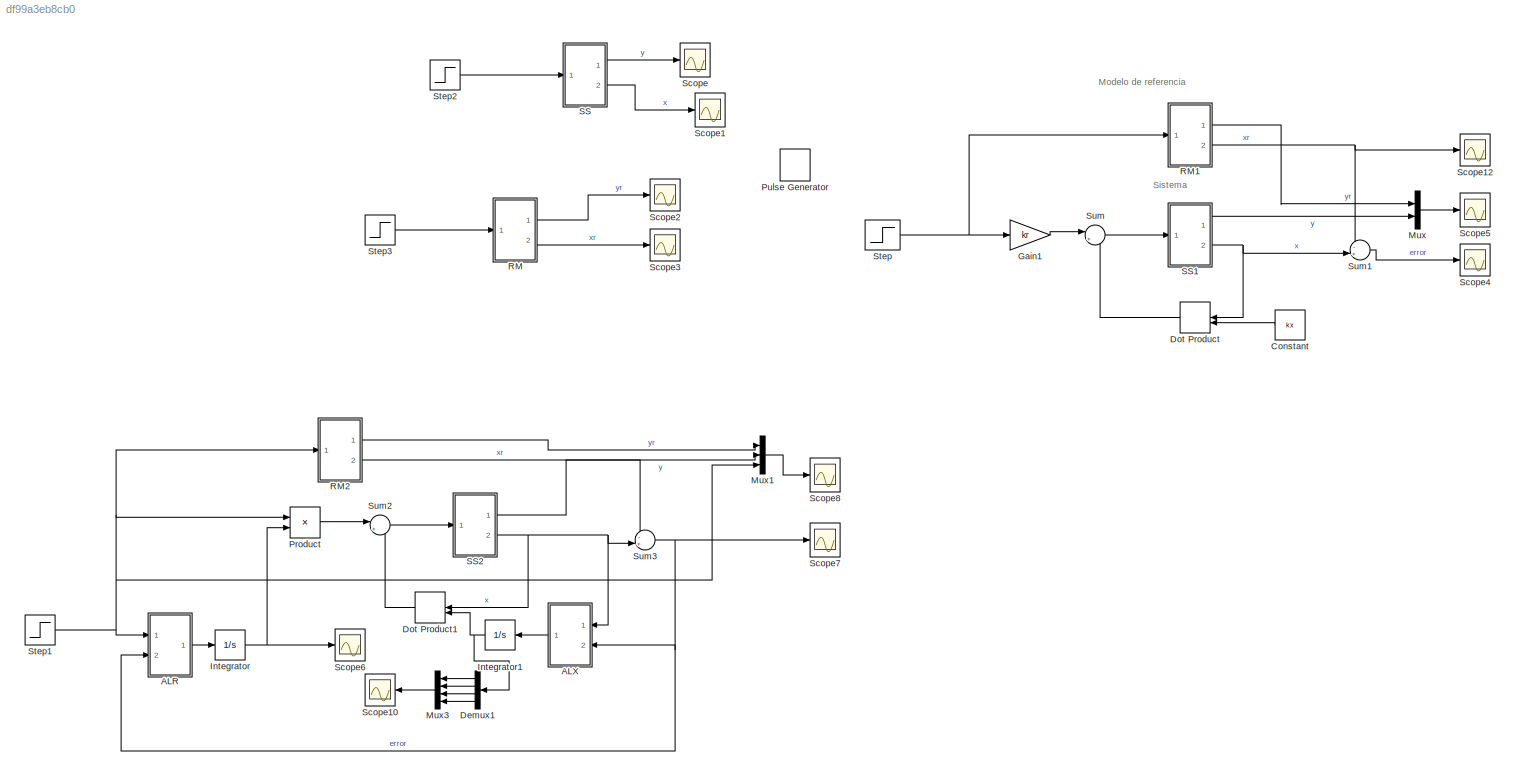
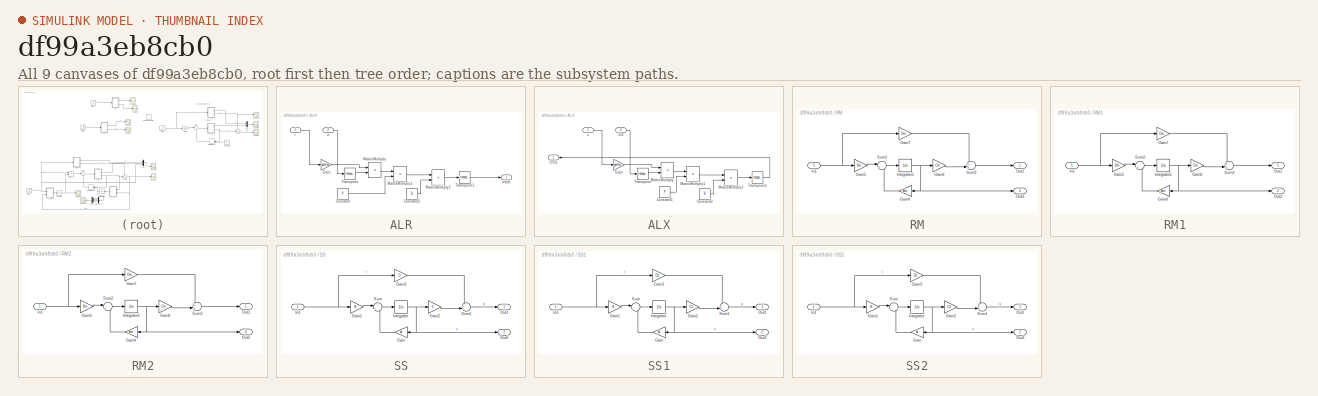
[diagram: thumbnail index - all 9 canvases of the model, root first then tree order]
MODEL slx_df99a3eb8cb0
KIND model
CONFIG AbsTol = auto
CONFIG EnableMultiTasking = off
CONFIG FixedStep = auto
CONFIG MaxStep = auto
CONFIG MinStep = auto
CONFIG RelTol = 1e-3
CONFIG SampleTimeConstraint = Unconstrained
CONFIG SolverName = VariableStepAuto
CONFIG StartTime = 0.0
CONFIG StopTime = 10
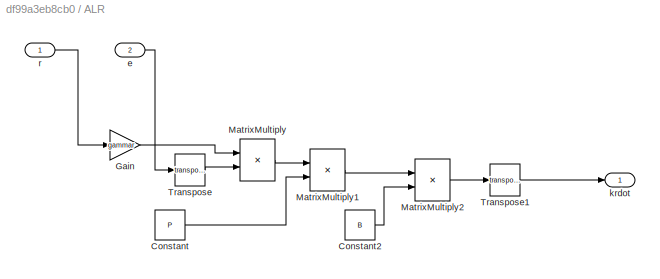
BLOCK [SubSystem] ALR
  NameLocation = top
  Ports = [2, 1]
  RequestExecContextInheritance = off
BLOCK [Constant] ALR/Constant
  Value = P
BLOCK [Constant] ALR/Constant2
  Value = B
BLOCK [Gain] ALR/Gain
  Gain = gammar
BLOCK [Product] ALR/MatrixMultiply
  Multiplication = Matrix(*)
  Ports = [2, 1]
BLOCK [Product] ALR/MatrixMultiply1
  Multiplication = Matrix(*)
  Ports = [2, 1]
BLOCK [Product] ALR/MatrixMultiply2
  Multiplication = Matrix(*)
  Ports = [2, 1]
BLOCK [Math] ALR/Transpose
  Operator = transpose
  Ports = [1, 1]
BLOCK [Math] ALR/Transpose1
  Operator = transpose
  Ports = [1, 1]
BLOCK [Inport] ALR/e
  Port = 2
BLOCK [Outport] ALR/krdot
BLOCK [Inport] ALR/r
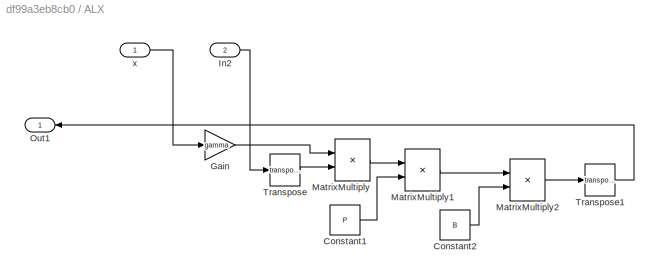
BLOCK [SubSystem] ALX
  Ports = [2, 1]
  RequestExecContextInheritance = off
BLOCK [Constant] ALX/Constant1
  Value = P
BLOCK [Constant] ALX/Constant2
  Value = B
BLOCK [Gain] ALX/Gain
  Gain = gamma
  Multiplication = Matrix(K*u)
BLOCK [Inport] ALX/In2
  Port = 2
BLOCK [Product] ALX/MatrixMultiply
  Multiplication = Matrix(*)
  Ports = [2, 1]
BLOCK [Product] ALX/MatrixMultiply1
  Multiplication = Matrix(*)
  Ports = [2, 1]
BLOCK [Product] ALX/MatrixMultiply2
  Multiplication = Matrix(*)
  Ports = [2, 1]
BLOCK [Outport] ALX/Out1
BLOCK [Math] ALX/Transpose
  Operator = transpose
  Ports = [1, 1]
BLOCK [Math] ALX/Transpose1
  Operator = transpose
  Ports = [1, 1]
BLOCK [Inport] ALX/x
BLOCK [Constant] Constant
  Value = kx
BLOCK [Demux] Demux1
  Ports = [1, 4]
BLOCK [DotProduct] Dot Product
  NameLocation = top
  OutDataTypeStr = Inherit: Inherit via internal rule
BLOCK [DotProduct] Dot Product1
  NameLocation = top
  OutDataTypeStr = Inherit: Inherit via internal rule
BLOCK [Gain] Gain1
  Gain = kr
BLOCK [Integrator] Integrator
  InitialCondition = kr
  Ports = [1, 1]
BLOCK [Integrator] Integrator1
  InitialCondition = [kx]
  Ports = [1, 1]
BLOCK [Mux] Mux
  DisplayOption = bar
  Inputs = 2
  Ports = [2, 1]
BLOCK [Mux] Mux1
  DisplayOption = bar
  Inputs = 3
  Ports = [3, 1]
BLOCK [Mux] Mux3
  DisplayOption = bar
  Ports = [4, 1]
BLOCK [Product] Product
  Ports = [2, 1]
BLOCK [DiscretePulseGenerator] Pulse Generator
  Period = 5
  Ports = [0, 1]
  PulseType = Time based
  PulseWidth = 50
BLOCK [SubSystem] RM
  Ports = [1, 2]
  RequestExecContextInheritance = off
BLOCK [Gain] RM/Gain4
  Gain = Am
  Multiplication = Matrix(K*u)
BLOCK [Gain] RM/Gain5
  Gain = Bm
  Multiplication = Matrix(K*u)
BLOCK [Gain] RM/Gain6
  Gain = Cm
  Multiplication = Matrix(K*u)
BLOCK [Gain] RM/Gain7
  Gain = Dm
  Multiplication = Matrix(K*u)
BLOCK [Inport] RM/In1
BLOCK [Integrator] RM/Integrator1
  Ports = [1, 1]
BLOCK [Outport] RM/Out1
BLOCK [Outport] RM/Out2
  Port = 2
BLOCK [Sum] RM/Sum2
  Inputs = |++
  Ports = [2, 1]
BLOCK [Sum] RM/Sum3
  Inputs = ++|
  Ports = [2, 1]
BLOCK [SubSystem] RM1
  Ports = [1, 2]
  RequestExecContextInheritance = off
BLOCK [Gain] RM1/Gain4
  Gain = Am
  Multiplication = Matrix(K*u)
BLOCK [Gain] RM1/Gain5
  Gain = Bm
  Multiplication = Matrix(K*u)
BLOCK [Gain] RM1/Gain6
  Gain = Cm
  Multiplication = Matrix(K*u)
BLOCK [Gain] RM1/Gain7
  Gain = Dm
  Multiplication = Matrix(K*u)
BLOCK [Inport] RM1/In1
BLOCK [Integrator] RM1/Integrator1
  Ports = [1, 1]
BLOCK [Outport] RM1/Out1
BLOCK [Outport] RM1/Out2
  Port = 2
BLOCK [Sum] RM1/Sum2
  Inputs = |++
  Ports = [2, 1]
BLOCK [Sum] RM1/Sum3
  Inputs = ++|
  Ports = [2, 1]
BLOCK [SubSystem] RM2
  Ports = [1, 2]
  RequestExecContextInheritance = off
BLOCK [Gain] RM2/Gain4
  Gain = Am
  Multiplication = Matrix(K*u)
BLOCK [Gain] RM2/Gain5
  Gain = Bm
  Multiplication = Matrix(K*u)
BLOCK [Gain] RM2/Gain6
  Gain = Cm
  Multiplication = Matrix(K*u)
BLOCK [Gain] RM2/Gain7
  Gain = Dm
  Multiplication = Matrix(K*u)
BLOCK [Inport] RM2/In1
BLOCK [Integrator] RM2/Integrator1
  Ports = [1, 1]
BLOCK [Outport] RM2/Out1
BLOCK [Outport] RM2/Out2
  Port = 2
BLOCK [Sum] RM2/Sum2
  Inputs = |++
  Ports = [2, 1]
BLOCK [Sum] RM2/Sum3
  Inputs = ++|
  Ports = [2, 1]
BLOCK [SubSystem] SS
  Ports = [1, 2]
  RequestExecContextInheritance = off
BLOCK [Gain] SS/Gain
  Gain = A
  Multiplication = Matrix(K*u)
BLOCK [Gain] SS/Gain1
  Gain = B
  Multiplication = Matrix(K*u)
BLOCK [Gain] SS/Gain2
  Gain = C
  Multiplication = Matrix(K*u)
BLOCK [Gain] SS/Gain3
  Gain = D
  Multiplication = Matrix(K*u)
BLOCK [Inport] SS/In1
BLOCK [Integrator] SS/Integrator
  Ports = [1, 1]
BLOCK [Outport] SS/Out1
BLOCK [Outport] SS/Out2
  Port = 2
BLOCK [Sum] SS/Sum
  Inputs = |++
  Ports = [2, 1]
BLOCK [Sum] SS/Sum1
  Inputs = ++|
  Ports = [2, 1]
BLOCK [SubSystem] SS1
  Ports = [1, 2]
  RequestExecContextInheritance = off
BLOCK [Gain] SS1/Gain
  Gain = A
  Multiplication = Matrix(K*u)
BLOCK [Gain] SS1/Gain1
  Gain = B
  Multiplication = Matrix(K*u)
BLOCK [Gain] SS1/Gain2
  Gain = C2
  Multiplication = Matrix(K*u)
BLOCK [Gain] SS1/Gain3
  Gain = D2
  Multiplication = Matrix(K*u)
BLOCK [Inport] SS1/In1
BLOCK [Integrator] SS1/Integrator
  Ports = [1, 1]
BLOCK [Outport] SS1/Out1
BLOCK [Outport] SS1/Out2
  Port = 2
BLOCK [Sum] SS1/Sum
  Inputs = |++
  Ports = [2, 1]
BLOCK [Sum] SS1/Sum1
  Inputs = ++|
  Ports = [2, 1]
BLOCK [SubSystem] SS2
  Ports = [1, 2]
  RequestExecContextInheritance = off
BLOCK [Gain] SS2/Gain
  Gain = A
  Multiplication = Matrix(K*u)
BLOCK [Gain] SS2/Gain1
  Gain = B
  Multiplication = Matrix(K*u)
BLOCK [Gain] SS2/Gain2
  Gain = C2
  Multiplication = Matrix(K*u)
BLOCK [Gain] SS2/Gain3
  Gain = D2
  Multiplication = Matrix(K*u)
BLOCK [Inport] SS2/In1
BLOCK [Integrator] SS2/Integrator
  Ports = [1, 1]
BLOCK [Outport] SS2/Out1
BLOCK [Outport] SS2/Out2
  Port = 2
BLOCK [Sum] SS2/Sum
  Inputs = |++
  Ports = [2, 1]
BLOCK [Sum] SS2/Sum1
  Inputs = ++|
  Ports = [2, 1]
BLOCK [Scope] Scope
  Floating = off
  NumInputPorts = 1
  Ports = [1]
  ScopeSpecificationString = Simulink.scopes.TimeScopeBlockCfg('CurrentConfiguration', extmgr.ConfigurationSet(extmgr.Configuration('Core','General UI',true),extmgr.Configuration('Core','Source UI',true),extmgr.Configuration('Sources','WiredSimulink',true,'DataLogging',true,'DataLoggingVariableName','salidaOL','DataLoggingSaveFormat','StructureWithTime'),extmgr.Configuration('Visuals','Time Domain',true,'SerializedDisplays',{...<+1480ch>
BLOCK [Scope] Scope1
  Floating = off
  NumInputPorts = 1
  Ports = [1]
  ScopeSpecificationString = Simulink.scopes.TimeScopeBlockCfg('CurrentConfiguration', extmgr.ConfigurationSet(extmgr.Configuration('Core','General UI',true),extmgr.Configuration('Core','Source UI',true),extmgr.Configuration('Sources','WiredSimulink',true,'DataLoggingVariableName','estadoOL','DataLogging',true,'DataLoggingSaveFormat','StructureWithTime'),extmgr.Configuration('Visuals','Time Domain',true,'SerializedDisplays',{...<+1510ch>
BLOCK [Scope] Scope10
  Floating = off
  NumInputPorts = 1
  Ports = [1]
  ScopeSpecificationString = Simulink.scopes.TimeScopeBlockCfg('CurrentConfiguration', extmgr.ConfigurationSet(extmgr.Configuration('Core','General UI',true),extmgr.Configuration('Core','Source UI',true),extmgr.Configuration('Sources','WiredSimulink',true,'DataLoggingVariableName','kx','DataLogging',true,'DataLoggingSaveFormat','StructureWithTime'),extmgr.Configuration('Visuals','Time Domain',true,'SerializedDisplays',{struct...<+1484ch>
BLOCK [Scope] Scope12
  Floating = off
  NumInputPorts = 1
  Ports = [1]
  ScopeSpecificationString = Simulink.scopes.TimeScopeBlockCfg('CurrentConfiguration', extmgr.ConfigurationSet(extmgr.Configuration('Core','General UI',true),extmgr.Configuration('Core','Source UI',true),extmgr.Configuration('Sources','WiredSimulink',true,'DataLoggingVariableName','rmx','DataLogging',true,'DataLoggingSaveFormat','StructureWithTime'),extmgr.Configuration('Visuals','Time Domain',true,'SerializedDisplays',{struc...<+1440ch>
BLOCK [Scope] Scope2
  Floating = off
  NumInputPorts = 1
  Ports = [1]
  ScopeSpecificationString = Simulink.scopes.TimeScopeBlockCfg('CurrentConfiguration', extmgr.ConfigurationSet(extmgr.Configuration('Core','General UI',true),extmgr.Configuration('Core','Source UI',true),extmgr.Configuration('Sources','WiredSimulink',true,'DataLoggingVariableName','MR','DataLogging',true,'DataLoggingSaveFormat','StructureWithTime'),extmgr.Configuration('Visuals','Time Domain',true,'SerializedDisplays',{struct...<+1439ch>
BLOCK [Scope] Scope3
  Floating = off
  NumInputPorts = 1
  Ports = [1]
  ScopeSpecificationString = Simulink.scopes.TimeScopeBlockCfg('CurrentConfiguration', extmgr.ConfigurationSet(extmgr.Configuration('Core','General UI',true),extmgr.Configuration('Core','Source UI',true),extmgr.Configuration('Sources','WiredSimulink',true,'DataLoggingVariableName','ScopeData3'),extmgr.Configuration('Visuals','Time Domain',true,'SerializedDisplays',{struct('MinYLimReal','-1.00000','MaxYLimReal','1.00000','YLab...<+1384ch>
BLOCK [Scope] Scope4
  Floating = off
  NumInputPorts = 1
  Ports = [1]
  ScopeSpecificationString = Simulink.scopes.TimeScopeBlockCfg('CurrentConfiguration', extmgr.ConfigurationSet(extmgr.Configuration('Core','General UI',true),extmgr.Configuration('Core','Source UI',true),extmgr.Configuration('Sources','WiredSimulink',true,'DataLoggingVariableName','ScopeData4'),extmgr.Configuration('Visuals','Time Domain',true,'SerializedDisplays',{struct('MinYLimReal','-0.31973','MaxYLimReal','1.37024','YLab...<+1504ch>
BLOCK [Scope] Scope5
  Floating = off
  NumInputPorts = 1
  Ports = [1]
  ScopeSpecificationString = Simulink.scopes.TimeScopeBlockCfg('CurrentConfiguration', extmgr.ConfigurationSet(extmgr.Configuration('Core','General UI',true),extmgr.Configuration('Core','Source UI',true),extmgr.Configuration('Sources','WiredSimulink',true,'DataLoggingVariableName','mc','DataLogging',true,'DataLoggingSaveFormat','StructureWithTime'),extmgr.Configuration('Visuals','Time Domain',true,'SerializedDisplays',{struct...<+1445ch>
BLOCK [Scope] Scope6
  Floating = off
  NumInputPorts = 1
  Ports = [1]
  ScopeSpecificationString = Simulink.scopes.TimeScopeBlockCfg('CurrentConfiguration', extmgr.ConfigurationSet(extmgr.Configuration('Core','General UI',true),extmgr.Configuration('Core','Source UI',true),extmgr.Configuration('Sources','WiredSimulink',true,'DataLoggingVariableName','kr','DataLogging',true,'DataLoggingSaveFormat','StructureWithTime'),extmgr.Configuration('Visuals','Time Domain',true,'SerializedDisplays',{struct...<+1618ch>
BLOCK [Scope] Scope7
  Floating = off
  NumInputPorts = 1
  Ports = [1]
  ScopeSpecificationString = Simulink.scopes.TimeScopeBlockCfg('CurrentConfiguration', extmgr.ConfigurationSet(extmgr.Configuration('Core','General UI',true),extmgr.Configuration('Core','Source UI',true),extmgr.Configuration('Sources','WiredSimulink',true,'DataLoggingVariableName','error','DataLogging',true,'DataLoggingSaveFormat','StructureWithTime'),extmgr.Configuration('Visuals','Time Domain',true,'SerializedDisplays',{str...<+1559ch>
BLOCK [Scope] Scope8
  Floating = off
  NumInputPorts = 1
  Ports = [1]
  ScopeSpecificationString = Simulink.scopes.TimeScopeBlockCfg('CurrentConfiguration', extmgr.ConfigurationSet(extmgr.Configuration('Core','General UI',true),extmgr.Configuration('Core','Source UI',true),extmgr.Configuration('Sources','WiredSimulink',true,'DataLoggingVariableName','al','DataLogging',true,'DataLoggingSaveFormat','StructureWithTime'),extmgr.Configuration('Visuals','Time Domain',true,'SerializedDisplays',{struct...<+1621ch>
BLOCK [Step] Step
  SampleTime = 0
  Time = 0
BLOCK [Step] Step1
  SampleTime = 0
BLOCK [Step] Step2
  SampleTime = 0
BLOCK [Step] Step3
  SampleTime = 0
  Time = 0
BLOCK [Sum] Sum
  Inputs = |+-
  Ports = [2, 1]
BLOCK [Sum] Sum1
  Inputs = -+|
  Ports = [2, 1]
BLOCK [Sum] Sum2
  Inputs = |+-
  Ports = [2, 1]
BLOCK [Sum] Sum3
  Inputs = -+|
  Ports = [2, 1]
ANNOTATION (root): Modelo de referencia
ANNOTATION (root): Sistema
LINE ALR/Constant2:1 -> ALR/MatrixMultiply2:2
LINE ALR/Constant:1 -> ALR/MatrixMultiply1:2
LINE ALR/Gain:1 -> ALR/MatrixMultiply:1
LINE ALR/MatrixMultiply1:1 -> ALR/MatrixMultiply2:1
LINE ALR/MatrixMultiply2:1 -> ALR/Transpose1:1
LINE ALR/MatrixMultiply:1 -> ALR/MatrixMultiply1:1
LINE ALR/Transpose1:1 -> ALR/krdot:1
LINE ALR/Transpose:1 -> ALR/MatrixMultiply:2
LINE ALR/e:1 -> ALR/Transpose:1
LINE ALR/r:1 -> ALR/Gain:1
LINE ALR:1 -> Integrator:1
LINE ALX/Constant1:1 -> ALX/MatrixMultiply1:2
LINE ALX/Constant2:1 -> ALX/MatrixMultiply2:2
LINE ALX/Gain:1 -> ALX/MatrixMultiply:1
LINE ALX/In2:1 -> ALX/Transpose:1
LINE ALX/MatrixMultiply1:1 -> ALX/MatrixMultiply2:1
LINE ALX/MatrixMultiply2:1 -> ALX/Transpose1:1
LINE ALX/MatrixMultiply:1 -> ALX/MatrixMultiply1:1
LINE ALX/Transpose1:1 -> ALX/Out1:1
LINE ALX/Transpose:1 -> ALX/MatrixMultiply:2
LINE ALX/x:1 -> ALX/Gain:1
LINE ALX:1 -> Integrator1:1
LINE Constant:1 -> Dot Product:2
LINE Demux1:1 -> Mux3:1
LINE Demux1:2 -> Mux3:2
LINE Demux1:3 -> Mux3:3
LINE Demux1:4 -> Mux3:4
LINE Dot Product1:1 -> Sum2:2
LINE Dot Product:1 -> Sum:2
LINE Gain1:1 -> Sum:1
NET Integrator1:1 -> Demux1:1, Dot Product1:2
NET Integrator:1 -> Product:2, Scope6:1
LINE Mux1:1 -> Scope8:1
LINE Mux3:1 -> Scope10:1
LINE Mux:1 -> Scope5:1
LINE Product:1 -> Sum2:1
LINE RM/Gain4:1 -> RM/Sum2:2
LINE RM/Gain5:1 -> RM/Sum2:1
LINE RM/Gain6:1 -> RM/Sum3:2
LINE RM/Gain7:1 -> RM/Sum3:1
NET RM/In1:1 -> RM/Gain5:1, RM/Gain7:1
NET RM/Integrator1:1 -> RM/Gain4:1, RM/Gain6:1, RM/Out2:1
LINE RM/Sum2:1 -> RM/Integrator1:1
LINE RM/Sum3:1 -> RM/Out1:1
LINE RM1/Gain4:1 -> RM1/Sum2:2
LINE RM1/Gain5:1 -> RM1/Sum2:1
LINE RM1/Gain6:1 -> RM1/Sum3:2
LINE RM1/Gain7:1 -> RM1/Sum3:1
NET RM1/In1:1 -> RM1/Gain5:1, RM1/Gain7:1
NET RM1/Integrator1:1 -> RM1/Gain4:1, RM1/Gain6:1, RM1/Out2:1
LINE RM1/Sum2:1 -> RM1/Integrator1:1
LINE RM1/Sum3:1 -> RM1/Out1:1
LINE RM1:1 -> Mux:1
NET RM1:2 -> Scope12:1, Sum1:1
LINE RM2/Gain4:1 -> RM2/Sum2:2
LINE RM2/Gain5:1 -> RM2/Sum2:1
LINE RM2/Gain6:1 -> RM2/Sum3:2
LINE RM2/Gain7:1 -> RM2/Sum3:1
NET RM2/In1:1 -> RM2/Gain5:1, RM2/Gain7:1
NET RM2/Integrator1:1 -> RM2/Gain4:1, RM2/Gain6:1, RM2/Out2:1
LINE RM2/Sum2:1 -> RM2/Integrator1:1
LINE RM2/Sum3:1 -> RM2/Out1:1
LINE RM2:1 -> Mux1:1
LINE RM2:2 -> Sum3:1
LINE RM:1 -> Scope2:1
LINE RM:2 -> Scope3:1
LINE SS/Gain1:1 -> SS/Sum:1
LINE SS/Gain2:1 -> SS/Sum1:2
LINE SS/Gain3:1 -> SS/Sum1:1
LINE SS/Gain:1 -> SS/Sum:2
NET SS/In1:1 -> SS/Gain1:1, SS/Gain3:1
NET SS/Integrator:1 -> SS/Gain2:1, SS/Gain:1, SS/Out2:1
LINE SS/Sum1:1 -> SS/Out1:1
LINE SS/Sum:1 -> SS/Integrator:1
LINE SS1/Gain1:1 -> SS1/Sum:1
LINE SS1/Gain2:1 -> SS1/Sum1:2
LINE SS1/Gain3:1 -> SS1/Sum1:1
LINE SS1/Gain:1 -> SS1/Sum:2
NET SS1/In1:1 -> SS1/Gain1:1, SS1/Gain3:1
NET SS1/Integrator:1 -> SS1/Gain2:1, SS1/Gain:1, SS1/Out2:1
LINE SS1/Sum1:1 -> SS1/Out1:1
LINE SS1/Sum:1 -> SS1/Integrator:1
LINE SS1:1 -> Mux:2
NET SS1:2 -> Dot Product:1, Sum1:2
LINE SS2/Gain1:1 -> SS2/Sum:1
LINE SS2/Gain2:1 -> SS2/Sum1:2
LINE SS2/Gain3:1 -> SS2/Sum1:1
LINE SS2/Gain:1 -> SS2/Sum:2
NET SS2/In1:1 -> SS2/Gain1:1, SS2/Gain3:1
NET SS2/Integrator:1 -> SS2/Gain2:1, SS2/Gain:1, SS2/Out2:1
LINE SS2/Sum1:1 -> SS2/Out1:1
LINE SS2/Sum:1 -> SS2/Integrator:1
LINE SS2:1 -> Mux1:2
NET SS2:2 -> ALX:1, Dot Product1:1, Sum3:2
LINE SS:1 -> Scope:1
LINE SS:2 -> Scope1:1
NET Step1:1 -> ALR:1, Mux1:3, Product:1, RM2:1
LINE Step2:1 -> SS:1
LINE Step3:1 -> RM:1
NET Step:1 -> Gain1:1, RM1:1
LINE Sum1:1 -> Scope4:1
LINE Sum2:1 -> SS2:1
NET Sum3:1 -> ALR:2, ALX:2, Scope7:1
LINE Sum:1 -> SS1:1
note: NET lines group one-source signal fan-out (src -> all destinations, sorted); 1:1 wires keep LINE
